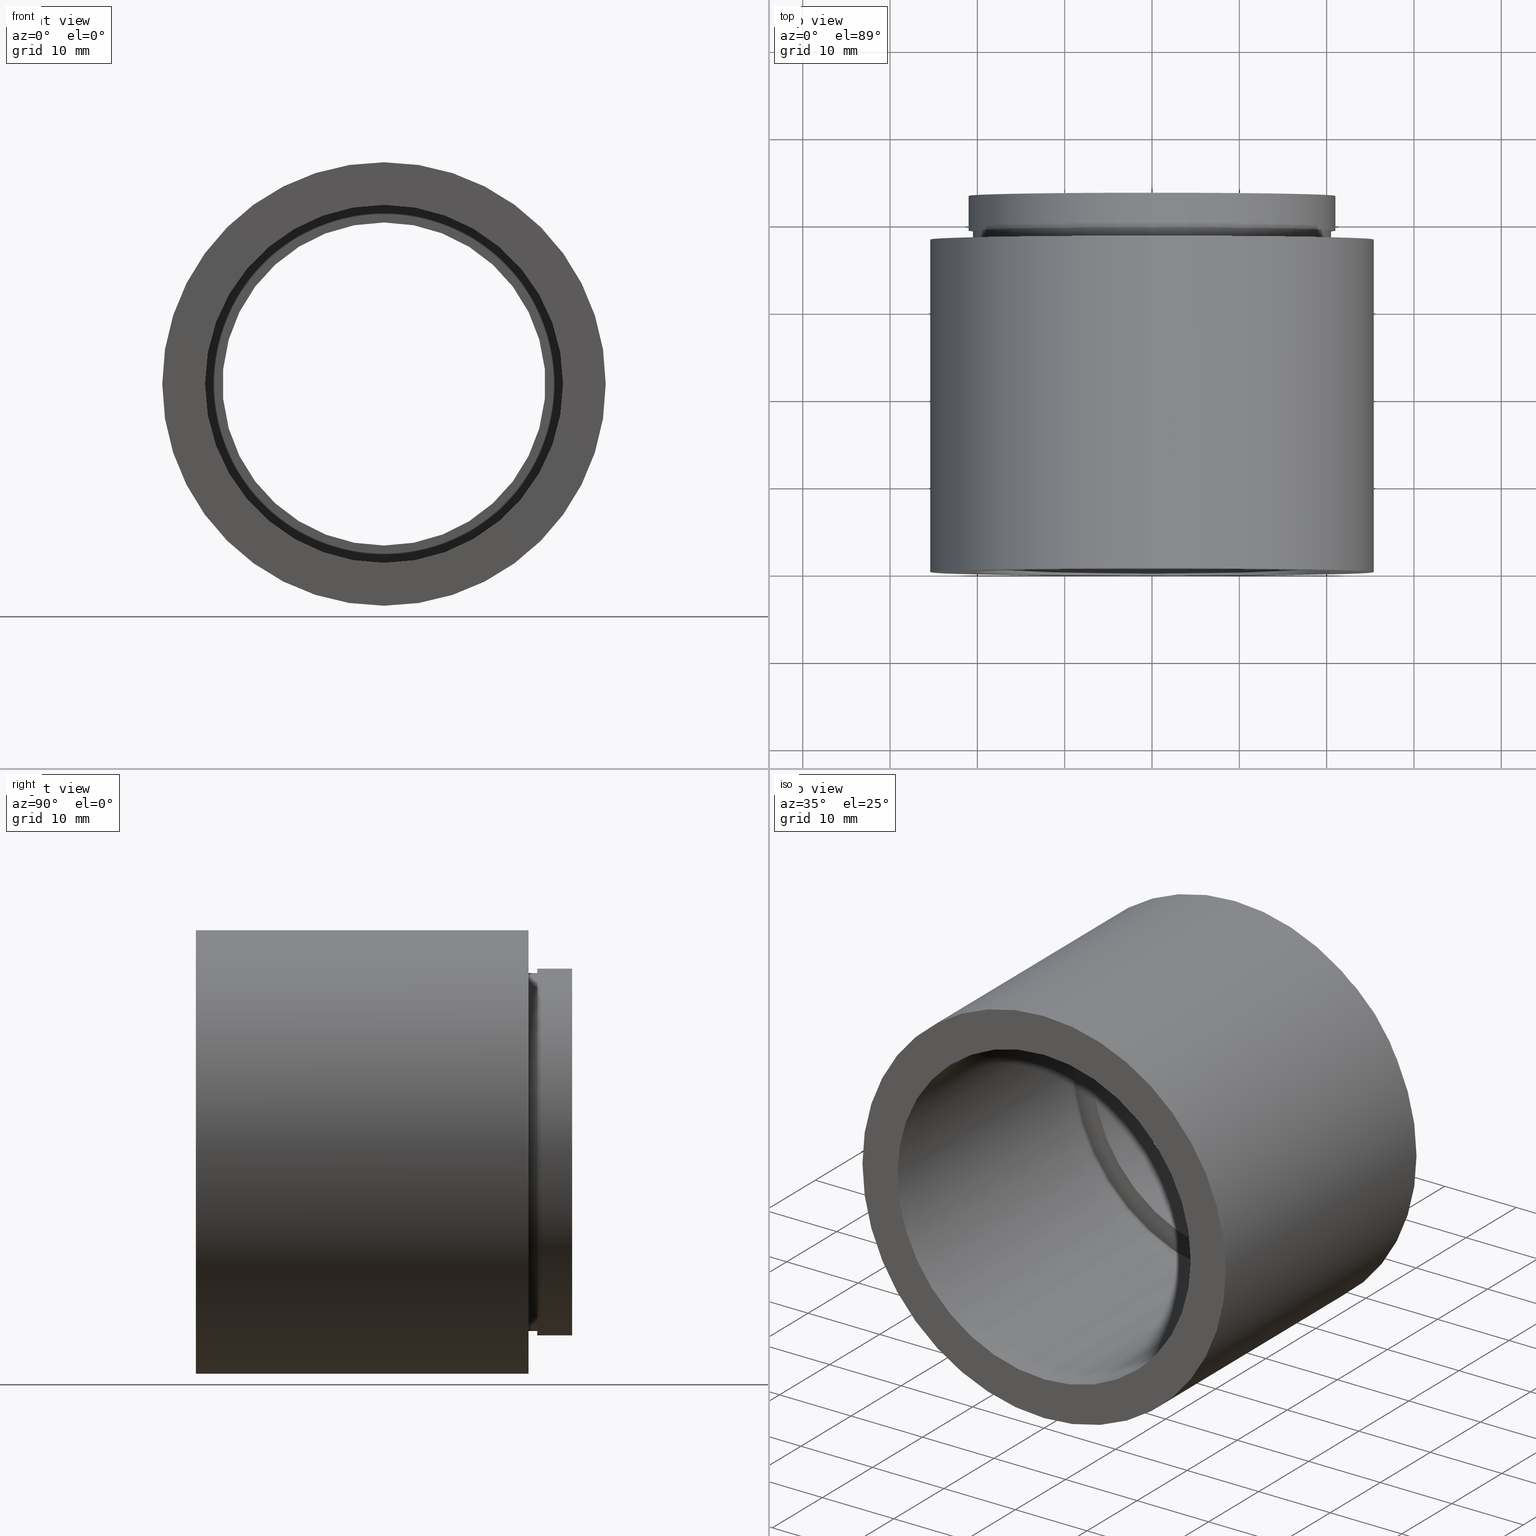
[diagram: canonical four-view strip — front | top / right | iso, engineering-drawing reading convention]
A machine part, canonical four-view strip (front | top / right | iso — engineering-drawing reading convention). The complete STEP part file that produces these views, byte-faithful:
ISO-10303-21;
HEADER;
FILE_DESCRIPTION (( 'STEP AP214' ),
    '1' );
FILE_NAME ('503024.STEP',
    '2019-09-05T05:40:55',
    ( '' ),
    ( '' ),
    'SwSTEP 2.0',
    'SolidWorks 2016',
    '' );
FILE_SCHEMA (( 'AUTOMOTIVE_DESIGN' ));
ENDSEC;

DATA;
#1 = MECHANICAL_DESIGN_GEOMETRIC_PRESENTATION_REPRESENTATION (  '', ( #8 ), #39 ) ;
#2 = ORIENTED_EDGE ( 'NONE', *, *, #157, .T. ) ;
#3 = EDGE_CURVE ( 'NONE', #292, #285, #214, .T. ) ;
#4 = CARTESIAN_POINT ( 'NONE',  ( 0.0000000000000000000, 35.09999999999999400, 20.50000000000002100 ) ) ;
#5 = ORIENTED_EDGE ( 'NONE', *, *, #215, .F. ) ;
#6 = CARTESIAN_POINT ( 'NONE',  ( 0.0000000000000000000, 43.09999999999998700, 18.50000000000001400 ) ) ;
#7 = CIRCLE ( 'NONE', #363, 18.50000000000001400 ) ;
#8 = STYLED_ITEM ( 'NONE', ( #207 ), #527 ) ;
#9 =( LENGTH_UNIT ( ) NAMED_UNIT ( * ) SI_UNIT ( .MILLI., .METRE. ) );
#10 = ORIENTED_EDGE ( 'NONE', *, *, #236, .T. ) ;
#11 = EDGE_CURVE ( 'NONE', #419, #345, #64, .T. ) ;
#12 = DIRECTION ( 'NONE',  ( -0.0000000000000000000, 1.000000000000000000, -0.0000000000000000000 ) ) ;
#13 = AXIS2_PLACEMENT_3D ( 'NONE', #422, #89, #368 ) ;
#14 =( NAMED_UNIT ( * ) SI_UNIT ( $, .STERADIAN. ) SOLID_ANGLE_UNIT ( ) );
#15 = DIRECTION ( 'NONE',  ( -0.0000000000000000000, 1.000000000000000000, -0.0000000000000000000 ) ) ;
#16 = EDGE_LOOP ( 'NONE', ( #142, #287 ) ) ;
#17 = MECHANICAL_DESIGN_GEOMETRIC_PRESENTATION_REPRESENTATION (  '', ( #336 ), #491 ) ;
#18 = ORIENTED_EDGE ( 'NONE', *, *, #215, .T. ) ;
#19 = CARTESIAN_POINT ( 'NONE',  ( 0.0000000000000000000, 161.3761669434274500, 21.10000000000001600 ) ) ;
#20 = PRESENTATION_STYLE_ASSIGNMENT (( #127 ) ) ;
#21 = FILL_AREA_STYLE_COLOUR ( '', #545 ) ;
#22 = FILL_AREA_STYLE_COLOUR ( '', #440 ) ;
#23 = EDGE_CURVE ( 'NONE', #477, #298, #7, .T. ) ;
#24 = CARTESIAN_POINT ( 'NONE',  ( 0.0000000000000000000, -2.775557561562891400E-014, 0.0000000000000000000 ) ) ;
#25 = VERTEX_POINT ( 'NONE', #209 ) ;
#26 = AXIS2_PLACEMENT_3D ( 'NONE', #496, #195, #548 ) ;
#27 = LINE ( 'NONE', #366, #34 ) ;
#28 = CARTESIAN_POINT ( 'NONE',  ( 0.0000000000000000000, 161.3761669434274500, 0.0000000000000000000 ) ) ;
#29 = CYLINDRICAL_SURFACE ( 'NONE', #279, 25.40000000000001600 ) ;
#30 =( NAMED_UNIT ( * ) PLANE_ANGLE_UNIT ( ) SI_UNIT ( $, .RADIAN. ) );
#31 = SURFACE_SIDE_STYLE ('',( #569 ) ) ;
#32 = DIRECTION ( 'NONE',  ( 0.0000000000000000000, 0.0000000000000000000, 1.000000000000000000 ) ) ;
#33 = CARTESIAN_POINT ( 'NONE',  ( 2.265596578422605000E-015, 43.09999999999998700, -18.50000000000001400 ) ) ;
#34 = VECTOR ( 'NONE', #325, 1000.000000000000000 ) ;
#35 = AXIS2_PLACEMENT_3D ( 'NONE', #37, #533, #235 ) ;
#36 = ADVANCED_FACE ( 'NONE', ( #608 ), #246, .T. ) ;
#37 = CARTESIAN_POINT ( 'NONE',  ( 0.0000000000000000000, -2.775557561562891400E-014, 0.0000000000000000000 ) ) ;
#38 = CARTESIAN_POINT ( 'NONE',  ( 0.0000000000000000000, 39.09999999999998000, 20.50000000000001100 ) ) ;
#39 =( GEOMETRIC_REPRESENTATION_CONTEXT ( 3 ) GLOBAL_UNCERTAINTY_ASSIGNED_CONTEXT ( ( #255 ) ) GLOBAL_UNIT_ASSIGNED_CONTEXT ( ( #121, #216, #271 ) ) REPRESENTATION_CONTEXT ( 'NONE', 'WORKASPACE' ) );
#40 = APPLICATION_PROTOCOL_DEFINITION ( 'draft international standard', 'automotive_design', 1998, #332 ) ;
#41 = EDGE_LOOP ( 'NONE', ( #605, #612 ) ) ;
#42 = ORIENTED_EDGE ( 'NONE', *, *, #51, .T. ) ;
#43 = PRESENTATION_STYLE_ASSIGNMENT (( #365 ) ) ;
#44 = ADVANCED_FACE ( 'NONE', ( #169, #191 ), #272, .F. ) ;
#45 = PLANE ( 'NONE',  #179 ) ;
#46 = CARTESIAN_POINT ( 'NONE',  ( 0.0000000000000000000, 43.09999999999998700, 0.0000000000000000000 ) ) ;
#47 =( GEOMETRIC_REPRESENTATION_CONTEXT ( 3 ) GLOBAL_UNCERTAINTY_ASSIGNED_CONTEXT ( ( #437 ) ) GLOBAL_UNIT_ASSIGNED_CONTEXT ( ( #425, #128, #273 ) ) REPRESENTATION_CONTEXT ( 'NONE', 'WORKASPACE' ) );
#48 = VERTEX_POINT ( 'NONE', #409 ) ;
#49 = ORIENTED_EDGE ( 'NONE', *, *, #249, .T. ) ;
#50 = AXIS2_PLACEMENT_3D ( 'NONE', #597, #383, #99 ) ;
#51 = EDGE_CURVE ( 'NONE', #517, #412, #57, .T. ) ;
#52 = CARTESIAN_POINT ( 'NONE',  ( 2.265596578422605000E-015, 161.3761669434274500, -18.50000000000001400 ) ) ;
#53 = STYLED_ITEM ( 'NONE', ( #79 ), #471 ) ;
#54 = ORIENTED_EDGE ( 'NONE', *, *, #61, .T. ) ;
#55 = ORIENTED_EDGE ( 'NONE', *, *, #227, .F. ) ;
#56 = CARTESIAN_POINT ( 'NONE',  ( 0.0000000000000000000, 35.09999999999999400, 0.0000000000000000000 ) ) ;
#57 = CIRCLE ( 'NONE', #290, 25.40000000000001300 ) ;
#58 = AXIS2_PLACEMENT_3D ( 'NONE', #173, #315, #613 ) ;
#59 = CARTESIAN_POINT ( 'NONE',  ( 0.0000000000000000000, 38.09999999999998000, 0.0000000000000000000 ) ) ;
#60 = VERTEX_POINT ( 'NONE', #38 ) ;
#61 = EDGE_CURVE ( 'NONE', #446, #412, #27, .T. ) ;
#62 = DIRECTION ( 'NONE',  ( -0.0000000000000000000, 1.000000000000000000, -0.0000000000000000000 ) ) ;
#63 = EDGE_LOOP ( 'NONE', ( #18, #241 ) ) ;
#64 = CIRCLE ( 'NONE', #302, 21.00000000000001400 ) ;
#65 = DIRECTION ( 'NONE',  ( -0.0000000000000000000, 1.000000000000000000, -0.0000000000000000000 ) ) ;
#66 = AXIS2_PLACEMENT_3D ( 'NONE', #418, #126, #185 ) ;
#67 = DIRECTION ( 'NONE',  ( -0.0000000000000000000, 1.000000000000000000, -0.0000000000000000000 ) ) ;
#68 = CARTESIAN_POINT ( 'NONE',  ( 0.0000000000000000000, 39.09999999999998000, 0.0000000000000000000 ) ) ;
#69 = ORIENTED_EDGE ( 'NONE', *, *, #459, .F. ) ;
#70 = AXIS2_PLACEMENT_3D ( 'NONE', #68, #172, #75 ) ;
#71 = CARTESIAN_POINT ( 'NONE',  ( 0.0000000000000000000, 39.09999999999998000, 21.00000000000001800 ) ) ;
#72 = FACE_OUTER_BOUND ( 'NONE', #204, .T. ) ;
#73 = FILL_AREA_STYLE_COLOUR ( '', #622 ) ;
#74 = DIRECTION ( 'NONE',  ( -0.0000000000000000000, 1.000000000000000000, -0.0000000000000000000 ) ) ;
#75 = DIRECTION ( 'NONE',  ( 0.0000000000000000000, 0.0000000000000000000, 1.000000000000000000 ) ) ;
#76 = EDGE_LOOP ( 'NONE', ( #143, #85, #54, #367 ) ) ;
#77 = CYLINDRICAL_SURFACE ( 'NONE', #210, 20.50000000000001100 ) ;
#78 = DIRECTION ( 'NONE',  ( 0.0000000000000000000, 0.0000000000000000000, 1.000000000000000000 ) ) ;
#79 = PRESENTATION_STYLE_ASSIGNMENT (( #528 ) ) ;
#80 = DIRECTION ( 'NONE',  ( -0.0000000000000000000, 1.000000000000000000, -0.0000000000000000000 ) ) ;
#81 =( LENGTH_UNIT ( ) NAMED_UNIT ( * ) SI_UNIT ( .MILLI., .METRE. ) );
#82 = AXIS2_PLACEMENT_3D ( 'NONE', #400, #114, #208 ) ;
#83 = SURFACE_SIDE_STYLE ('',( #86 ) ) ;
#84 = DIRECTION ( 'NONE',  ( 0.0000000000000000000, 0.0000000000000000000, 1.000000000000000000 ) ) ;
#85 = ORIENTED_EDGE ( 'NONE', *, *, #387, .T. ) ;
#86 = SURFACE_STYLE_FILL_AREA ( #620 ) ;
#87 = CYLINDRICAL_SURFACE ( 'NONE', #596, 18.50000000000001400 ) ;
#88 = ADVANCED_FACE ( 'NONE', ( #231, #72 ), #320, .F. ) ;
#89 = DIRECTION ( 'NONE',  ( -0.0000000000000000000, 1.000000000000000000, -0.0000000000000000000 ) ) ;
#90 = UNCERTAINTY_MEASURE_WITH_UNIT (LENGTH_MEASURE( 1.000000000000000100E-005 ), #467, 'distance_accuracy_value', 'NONE');
#91 = DIRECTION ( 'NONE',  ( -0.0000000000000000000, 1.000000000000000000, -0.0000000000000000000 ) ) ;
#92 = STYLED_ITEM ( 'NONE', ( #289 ), #537 ) ;
#93 = ORIENTED_EDGE ( 'NONE', *, *, #516, .T. ) ;
#94 = ORIENTED_EDGE ( 'NONE', *, *, #283, .F. ) ;
#95 = VECTOR ( 'NONE', #106, 1000.000000000000000 ) ;
#96 = CARTESIAN_POINT ( 'NONE',  ( 0.0000000000000000000, 35.09999999999999400, 0.0000000000000000000 ) ) ;
#97 = PRESENTATION_STYLE_ASSIGNMENT (( #598 ) ) ;
#98 = CARTESIAN_POINT ( 'NONE',  ( 0.0000000000000000000, 43.09999999999998700, 21.00000000000001400 ) ) ;
#99 = DIRECTION ( 'NONE',  ( 0.0000000000000000000, 0.0000000000000000000, 1.000000000000000000 ) ) ;
#100 = AXIS2_PLACEMENT_3D ( 'NONE', #326, #80, #624 ) ;
#101 = ORIENTED_EDGE ( 'NONE', *, *, #601, .T. ) ;
#102 = DIRECTION ( 'NONE',  ( -0.0000000000000000000, 1.000000000000000000, -0.0000000000000000000 ) ) ;
#103 = FACE_BOUND ( 'NONE', #170, .T. ) ;
#104 = SURFACE_STYLE_FILL_AREA ( #381 ) ;
#105 = PRESENTATION_LAYER_ASSIGNMENT (  '', '', ( #336 ) ) ;
#106 = DIRECTION ( 'NONE',  ( -0.0000000000000000000, 1.000000000000000000, -0.0000000000000000000 ) ) ;
#107 = CARTESIAN_POINT ( 'NONE',  ( 20.50000000000001400, 38.09999999999998000, 0.0000000000000000000 ) ) ;
#108 = CARTESIAN_POINT ( 'NONE',  ( 0.0000000000000000000, 39.09999999999998000, 0.0000000000000000000 ) ) ;
#109 = UNCERTAINTY_MEASURE_WITH_UNIT (LENGTH_MEASURE( 1.000000000000000100E-005 ), #132, 'distance_accuracy_value', 'NONE');
#110 = VERTEX_POINT ( 'NONE', #473 ) ;
#111 = ORIENTED_EDGE ( 'NONE', *, *, #540, .F. ) ;
#112 = CARTESIAN_POINT ( 'NONE',  ( 0.0000000000000000000, 38.09999999999998000, 25.40000000000001300 ) ) ;
#113 = CYLINDRICAL_SURFACE ( 'NONE', #233, 20.50000000000002100 ) ;
#114 = DIRECTION ( 'NONE',  ( -0.0000000000000000000, 1.000000000000000000, -0.0000000000000000000 ) ) ;
#115 = AXIS2_PLACEMENT_3D ( 'NONE', #46, #184, #340 ) ;
#116 = CARTESIAN_POINT ( 'NONE',  ( 2.265596578422605000E-015, 36.09999999999999400, -18.50000000000001400 ) ) ;
#117 = ORIENTED_EDGE ( 'NONE', *, *, #348, .T. ) ;
#118 = DIRECTION ( 'NONE',  ( 0.0000000000000000000, -0.0000000000000000000, -1.000000000000000000 ) ) ;
#119 = ORIENTED_EDGE ( 'NONE', *, *, #11, .F. ) ;
#120 = FILL_AREA_STYLE ('',( #615 ) ) ;
#121 =( LENGTH_UNIT ( ) NAMED_UNIT ( * ) SI_UNIT ( .MILLI., .METRE. ) );
#122 =( NAMED_UNIT ( * ) SI_UNIT ( $, .STERADIAN. ) SOLID_ANGLE_UNIT ( ) );
#123 = EDGE_LOOP ( 'NONE', ( #152, #361, #586, #493 ) ) ;
#124 = PRESENTATION_LAYER_ASSIGNMENT (  '', '', ( #92 ) ) ;
#125 = DIRECTION ( 'NONE',  ( 0.0000000000000000000, 0.0000000000000000000, 1.000000000000000000 ) ) ;
#126 = DIRECTION ( 'NONE',  ( -0.0000000000000000000, 1.000000000000000000, -0.0000000000000000000 ) ) ;
#127 = SURFACE_STYLE_USAGE ( .BOTH. , #83 ) ;
#128 =( NAMED_UNIT ( * ) PLANE_ANGLE_UNIT ( ) SI_UNIT ( $, .RADIAN. ) );
#129 = AXIS2_PLACEMENT_3D ( 'NONE', #476, #182, #282 ) ;
#130 = CARTESIAN_POINT ( 'NONE',  ( 18.50000000000001400, 43.09999999999998700, 0.0000000000000000000 ) ) ;
#131 = COLOUR_RGB ( '',1.000000000000000000, 1.000000000000000000, 1.000000000000000000 ) ;
#132 =( LENGTH_UNIT ( ) NAMED_UNIT ( * ) SI_UNIT ( .MILLI., .METRE. ) );
#133 = DIRECTION ( 'NONE',  ( 0.0000000000000000000, 0.0000000000000000000, 1.000000000000000000 ) ) ;
#134 = ADVANCED_FACE ( 'NONE', ( #346 ), #199, .F. ) ;
#135 = AXIS2_PLACEMENT_3D ( 'NONE', #435, #140, #490 ) ;
#136 = ORIENTED_EDGE ( 'NONE', *, *, #426, .F. ) ;
#137 = ORIENTED_EDGE ( 'NONE', *, *, #225, .F. ) ;
#138 = EDGE_CURVE ( 'NONE', #536, #419, #371, .T. ) ;
#139 = ORIENTED_EDGE ( 'NONE', *, *, #227, .T. ) ;
#140 = DIRECTION ( 'NONE',  ( -0.0000000000000000000, 1.000000000000000000, -0.0000000000000000000 ) ) ;
#141 = CARTESIAN_POINT ( 'NONE',  ( 0.0000000000000000000, 38.09999999999998000, 0.0000000000000000000 ) ) ;
#142 = ORIENTED_EDGE ( 'NONE', *, *, #551, .F. ) ;
#143 = ORIENTED_EDGE ( 'NONE', *, *, #190, .F. ) ;
#144 = LINE ( 'NONE', #294, #385 ) ;
#145 = AXIS2_PLACEMENT_3D ( 'NONE', #354, #67, #505 ) ;
#146 = CARTESIAN_POINT ( 'NONE',  ( 2.510525938252076500E-015, 35.09999999999999400, -20.50000000000002100 ) ) ;
#147 = VECTOR ( 'NONE', #427, 1000.000000000000000 ) ;
#148 = VECTOR ( 'NONE', #554, 1000.000000000000000 ) ;
#149 = DIRECTION ( 'NONE',  ( -0.0000000000000000000, 1.000000000000000000, -0.0000000000000000000 ) ) ;
#150 = PRODUCT_DEFINITION_FORMATION_WITH_SPECIFIED_SOURCE ( '�κ�', '', #242, .NOT_KNOWN. ) ;
#151 = ORIENTED_EDGE ( 'NONE', *, *, #561, .F. ) ;
#152 = ORIENTED_EDGE ( 'NONE', *, *, #494, .F. ) ;
#153 = ORIENTED_EDGE ( 'NONE', *, *, #327, .F. ) ;
#154 = CIRCLE ( 'NONE', #433, 20.50000000000002100 ) ;
#155 = AXIS2_PLACEMENT_3D ( 'NONE', #408, #360, #125 ) ;
#156 =( NAMED_UNIT ( * ) PLANE_ANGLE_UNIT ( ) SI_UNIT ( $, .RADIAN. ) );
#157 = EDGE_CURVE ( 'NONE', #159, #266, #277, .T. ) ;
#158 = CARTESIAN_POINT ( 'NONE',  ( 0.0000000000000000000, -2.775557561562891400E-014, 25.40000000000002000 ) ) ;
#159 = VERTEX_POINT ( 'NONE', #33 ) ;
#160 = DIRECTION ( 'NONE',  ( -0.0000000000000000000, 1.000000000000000000, -0.0000000000000000000 ) ) ;
#161 = CIRCLE ( 'NONE', #370, 21.10000000000001900 ) ;
#162 = EDGE_CURVE ( 'NONE', #285, #292, #525, .T. ) ;
#163 = DIRECTION ( 'NONE',  ( -0.0000000000000000000, 1.000000000000000000, -0.0000000000000000000 ) ) ;
#164 = CARTESIAN_POINT ( 'NONE',  ( 0.0000000000000000000, 36.09999999999999400, 0.0000000000000000000 ) ) ;
#165 = FILL_AREA_STYLE ('',( #73 ) ) ;
#166 = SURFACE_STYLE_USAGE ( .BOTH. , #357 ) ;
#167 = ORIENTED_EDGE ( 'NONE', *, *, #348, .F. ) ;
#168 = ORIENTED_EDGE ( 'NONE', *, *, #138, .F. ) ;
#169 = FACE_BOUND ( 'NONE', #16, .T. ) ;
#170 = EDGE_LOOP ( 'NONE', ( #93, #101 ) ) ;
#171 = EDGE_CURVE ( 'NONE', #298, #266, #386, .T. ) ;
#172 = DIRECTION ( 'NONE',  ( -0.0000000000000000000, 1.000000000000000000, -0.0000000000000000000 ) ) ;
#173 = CARTESIAN_POINT ( 'NONE',  ( 0.0000000000000000000, 161.3761669434274500, 0.0000000000000000000 ) ) ;
#174 = ORIENTED_EDGE ( 'NONE', *, *, #601, .F. ) ;
#175 = LINE ( 'NONE', #203, #352 ) ;
#176 = DIRECTION ( 'NONE',  ( 0.0000000000000000000, -1.000000000000000000, 0.0000000000000000000 ) ) ;
#177 = APPLICATION_PROTOCOL_DEFINITION ( 'draft international standard', 'automotive_design', 1998, #475 ) ;
#178 = CIRCLE ( 'NONE', #428, 18.50000000000001400 ) ;
#179 = AXIS2_PLACEMENT_3D ( 'NONE', #334, #374, #377 ) ;
#180 = FILL_AREA_STYLE_COLOUR ( '', #380 ) ;
#181 = DIRECTION ( 'NONE',  ( 0.0000000000000000000, -1.000000000000000000, 0.0000000000000000000 ) ) ;
#182 = DIRECTION ( 'NONE',  ( 0.0000000000000000000, 0.0000000000000000000, 1.000000000000000000 ) ) ;
#183 = EDGE_LOOP ( 'NONE', ( #137, #355 ) ) ;
#184 = DIRECTION ( 'NONE',  ( -0.0000000000000000000, 1.000000000000000000, -0.0000000000000000000 ) ) ;
#185 = DIRECTION ( 'NONE',  ( 0.0000000000000000000, 0.0000000000000000000, 1.000000000000000000 ) ) ;
#186 = CARTESIAN_POINT ( 'NONE',  ( 3.110602869834278800E-015, 161.3761669434274500, -25.40000000000001600 ) ) ;
#187 = ADVANCED_FACE ( 'NONE', ( #538, #544 ), #45, .F. ) ;
#188 = AXIS2_PLACEMENT_3D ( 'NONE', #96, #239, #133 ) ;
#189 = EDGE_LOOP ( 'NONE', ( #174, #376, #274, #522 ) ) ;
#190 = EDGE_CURVE ( 'NONE', #220, #517, #581, .T. ) ;
#191 = FACE_OUTER_BOUND ( 'NONE', #394, .T. ) ;
#192 = DIRECTION ( 'NONE',  ( -0.0000000000000000000, 1.000000000000000000, -0.0000000000000000000 ) ) ;
#193 = PLANE ( 'NONE',  #50 ) ;
#194 = PRODUCT_RELATED_PRODUCT_CATEGORY ( 'part', '', ( #242 ) ) ;
#195 = DIRECTION ( 'NONE',  ( -0.0000000000000000000, 1.000000000000000000, -0.0000000000000000000 ) ) ;
#196 = ORIENTED_EDGE ( 'NONE', *, *, #448, .T. ) ;
#197 = MECHANICAL_DESIGN_GEOMETRIC_PRESENTATION_REPRESENTATION (  '', ( #500 ), #299 ) ;
#198 = CARTESIAN_POINT ( 'NONE',  ( 0.0000000000000000000, 39.09999999999998000, 0.0000000000000000000 ) ) ;
#199 = CYLINDRICAL_SURFACE ( 'NONE', #567, 21.10000000000001600 ) ;
#200 = UNCERTAINTY_MEASURE_WITH_UNIT (LENGTH_MEASURE( 1.000000000000000100E-005 ), #415, 'distance_accuracy_value', 'NONE');
#201 = VECTOR ( 'NONE', #461, 1000.000000000000000 ) ;
#202 = DIRECTION ( 'NONE',  ( -0.0000000000000000000, 1.000000000000000000, -0.0000000000000000000 ) ) ;
#203 = CARTESIAN_POINT ( 'NONE',  ( 2.510525938252075300E-015, 161.3761669434274500, -20.50000000000001100 ) ) ;
#204 = EDGE_LOOP ( 'NONE', ( #10, #619 ) ) ;
#205 = DIRECTION ( 'NONE',  ( -0.0000000000000000000, 1.000000000000000000, -0.0000000000000000000 ) ) ;
#206 = EDGE_LOOP ( 'NONE', ( #94, #317 ) ) ;
#207 = PRESENTATION_STYLE_ASSIGNMENT (( #166 ) ) ;
#208 = DIRECTION ( 'NONE',  ( 0.0000000000000000000, 0.0000000000000000000, 1.000000000000000000 ) ) ;
#209 = CARTESIAN_POINT ( 'NONE',  ( 2.510525938252075300E-015, 39.09999999999998000, -20.50000000000001100 ) ) ;
#210 = AXIS2_PLACEMENT_3D ( 'NONE', #492, #393, #590 ) ;
#211 = DIRECTION ( 'NONE',  ( 0.0000000000000000000, 0.0000000000000000000, 1.000000000000000000 ) ) ;
#212 = EDGE_LOOP ( 'NONE', ( #382, #221, #69, #580 ) ) ;
#213 = DIRECTION ( 'NONE',  ( 0.0000000000000000000, 0.0000000000000000000, 1.000000000000000000 ) ) ;
#214 = CIRCLE ( 'NONE', #268, 20.50000000000002100 ) ;
#215 = EDGE_CURVE ( 'NONE', #298, #477, #464, .T. ) ;
#216 =( NAMED_UNIT ( * ) PLANE_ANGLE_UNIT ( ) SI_UNIT ( $, .RADIAN. ) );
#217 =( NAMED_UNIT ( * ) SI_UNIT ( $, .STERADIAN. ) SOLID_ANGLE_UNIT ( ) );
#218 = UNCERTAINTY_MEASURE_WITH_UNIT (LENGTH_MEASURE( 1.000000000000000100E-005 ), #81, 'distance_accuracy_value', 'NONE');
#219 = DIRECTION ( 'NONE',  ( 0.0000000000000000000, 0.0000000000000000000, 1.000000000000000000 ) ) ;
#220 = VERTEX_POINT ( 'NONE', #539 ) ;
#221 = ORIENTED_EDGE ( 'NONE', *, *, #138, .T. ) ;
#222 = FACE_OUTER_BOUND ( 'NONE', #189, .T. ) ;
#223 = SURFACE_STYLE_FILL_AREA ( #252 ) ;
#224 = PRODUCT_DEFINITION_SHAPE ( 'NONE', 'NONE',  #486 ) ;
#225 = EDGE_CURVE ( 'NONE', #384, #438, #512, .T. ) ;
#226 = SURFACE_STYLE_USAGE ( .BOTH. , #31 ) ;
#227 = EDGE_CURVE ( 'NONE', #48, #110, #397, .T. ) ;
#228 = DIRECTION ( 'NONE',  ( -0.0000000000000000000, 1.000000000000000000, -0.0000000000000000000 ) ) ;
#229 = ORIENTED_EDGE ( 'NONE', *, *, #61, .F. ) ;
#230 =( NAMED_UNIT ( * ) PLANE_ANGLE_UNIT ( ) SI_UNIT ( $, .RADIAN. ) );
#231 = FACE_BOUND ( 'NONE', #480, .T. ) ;
#232 = CARTESIAN_POINT ( 'NONE',  ( 0.0000000000000000000, 161.3761669434274500, 18.50000000000001400 ) ) ;
#233 = AXIS2_PLACEMENT_3D ( 'NONE', #541, #91, #349 ) ;
#234 = ADVANCED_FACE ( 'NONE', ( #497 ), #113, .F. ) ;
#235 = DIRECTION ( 'NONE',  ( 0.0000000000000000000, 0.0000000000000000000, 1.000000000000000000 ) ) ;
#236 = EDGE_CURVE ( 'NONE', #565, #556, #161, .T. ) ;
#237 = ADVANCED_FACE ( 'NONE', ( #481, #253 ), #388, .F. ) ;
#238 = CLOSED_SHELL ( 'NONE', ( #134, #527, #532, #284, #36, #488, #436, #44, #537, #584, #478, #237, #432, #291, #234, #88, #288, #187 ) ) ;
#239 = DIRECTION ( 'NONE',  ( -0.0000000000000000000, 1.000000000000000000, -0.0000000000000000000 ) ) ;
#240 = DIRECTION ( 'NONE',  ( 0.0000000000000000000, 0.0000000000000000000, 1.000000000000000000 ) ) ;
#241 = ORIENTED_EDGE ( 'NONE', *, *, #23, .T. ) ;
#242 = PRODUCT ( '503024', '503024', '', ( #373 ) ) ;
#243 = PRESENTATION_LAYER_ASSIGNMENT (  '', '', ( #500 ) ) ;
#244 = ORIENTED_EDGE ( 'NONE', *, *, #327, .T. ) ;
#245 = FACE_OUTER_BOUND ( 'NONE', #123, .T. ) ;
#246 = CYLINDRICAL_SURFACE ( 'NONE', #350, 21.00000000000001800 ) ;
#247 = CARTESIAN_POINT ( 'NONE',  ( 0.0000000000000000000, 36.09999999999999400, 0.0000000000000000000 ) ) ;
#248 = CIRCLE ( 'NONE', #70, 20.50000000000001100 ) ;
#249 = EDGE_CURVE ( 'NONE', #600, #285, #144, .T. ) ;
#250 = EDGE_LOOP ( 'NONE', ( #293, #592, #594, #542 ) ) ;
#251 = AXIS2_PLACEMENT_3D ( 'NONE', #130, #181, #118 ) ;
#252 = FILL_AREA_STYLE ('',( #21 ) ) ;
#253 = FACE_OUTER_BOUND ( 'NONE', #312, .T. ) ;
#254 = CARTESIAN_POINT ( 'NONE',  ( 0.0000000000000000000, 161.3761669434274500, 0.0000000000000000000 ) ) ;
#255 = UNCERTAINTY_MEASURE_WITH_UNIT (LENGTH_MEASURE( 1.000000000000000100E-005 ), #121, 'distance_accuracy_value', 'NONE');
#256 = DIRECTION ( 'NONE',  ( -0.0000000000000000000, 1.000000000000000000, -0.0000000000000000000 ) ) ;
#257 = CARTESIAN_POINT ( 'NONE',  ( 2.584004746200917000E-015, 36.09999999999999400, -21.10000000000001600 ) ) ;
#258 = CARTESIAN_POINT ( 'NONE',  ( 0.0000000000000000000, 36.09999999999999400, 0.0000000000000000000 ) ) ;
#259 = ORIENTED_EDGE ( 'NONE', *, *, #162, .T. ) ;
#260 = ORIENTED_EDGE ( 'NONE', *, *, #485, .T. ) ;
#261 = CARTESIAN_POINT ( 'NONE',  ( 0.0000000000000000000, 36.09999999999999400, 21.10000000000001600 ) ) ;
#262 = LINE ( 'NONE', #571, #201 ) ;
#263 = CARTESIAN_POINT ( 'NONE',  ( 3.110602869834278800E-015, 38.09999999999998000, -25.40000000000001300 ) ) ;
#264 = AXIS2_PLACEMENT_3D ( 'NONE', #59, #603, #310 ) ;
#265 = ORIENTED_EDGE ( 'NONE', *, *, #11, .T. ) ;
#266 = VERTEX_POINT ( 'NONE', #6 ) ;
#267 = DIRECTION ( 'NONE',  ( -0.0000000000000000000, 1.000000000000000000, -0.0000000000000000000 ) ) ;
#268 = AXIS2_PLACEMENT_3D ( 'NONE', #402, #256, #308 ) ;
#269 = SURFACE_STYLE_FILL_AREA ( #165 ) ;
#270 = COLOUR_RGB ( '',1.000000000000000000, 1.000000000000000000, 1.000000000000000000 ) ;
#271 =( NAMED_UNIT ( * ) SI_UNIT ( $, .STERADIAN. ) SOLID_ANGLE_UNIT ( ) );
#272 = PLANE ( 'NONE',  #251 ) ;
#273 =( NAMED_UNIT ( * ) SI_UNIT ( $, .STERADIAN. ) SOLID_ANGLE_UNIT ( ) );
#274 = ORIENTED_EDGE ( 'NONE', *, *, #3, .T. ) ;
#275 = CARTESIAN_POINT ( 'NONE',  ( 0.0000000000000000000, 38.09999999999998000, 0.0000000000000000000 ) ) ;
#276 =( NAMED_UNIT ( * ) PLANE_ANGLE_UNIT ( ) SI_UNIT ( $, .RADIAN. ) );
#277 = CIRCLE ( 'NONE', #115, 18.50000000000001400 ) ;
#278 = CIRCLE ( 'NONE', #359, 20.50000000000001100 ) ;
#279 = AXIS2_PLACEMENT_3D ( 'NONE', #502, #160, #511 ) ;
#280 =( NAMED_UNIT ( * ) SI_UNIT ( $, .STERADIAN. ) SOLID_ANGLE_UNIT ( ) );
#281 = DIRECTION ( 'NONE',  ( -0.0000000000000000000, 1.000000000000000000, -0.0000000000000000000 ) ) ;
#282 = DIRECTION ( 'NONE',  ( 1.000000000000000000, 0.0000000000000000000, 0.0000000000000000000 ) ) ;
#283 = EDGE_CURVE ( 'NONE', #524, #536, #369, .T. ) ;
#284 = ADVANCED_FACE ( 'NONE', ( #495 ), #77, .T. ) ;
#285 = VERTEX_POINT ( 'NONE', #4 ) ;
#286 = CARTESIAN_POINT ( 'NONE',  ( 0.0000000000000000000, 43.09999999999998700, 0.0000000000000000000 ) ) ;
#287 = ORIENTED_EDGE ( 'NONE', *, *, #157, .F. ) ;
#288 = ADVANCED_FACE ( 'NONE', ( #245 ), #331, .F. ) ;
#289 = PRESENTATION_STYLE_ASSIGNMENT (( #226 ) ) ;
#290 = AXIS2_PLACEMENT_3D ( 'NONE', #275, #228, #78 ) ;
#291 = ADVANCED_FACE ( 'NONE', ( #614, #103 ), #193, .F. ) ;
#292 = VERTEX_POINT ( 'NONE', #146 ) ;
#293 = ORIENTED_EDGE ( 'NONE', *, *, #583, .F. ) ;
#294 = CARTESIAN_POINT ( 'NONE',  ( 0.0000000000000000000, 161.3761669434274500, 20.50000000000002100 ) ) ;
#295 = EDGE_CURVE ( 'NONE', #412, #517, #364, .T. ) ;
#296 = FACE_OUTER_BOUND ( 'NONE', #206, .T. ) ;
#297 =( NAMED_UNIT ( * ) SI_UNIT ( $, .STERADIAN. ) SOLID_ANGLE_UNIT ( ) );
#298 = VERTEX_POINT ( 'NONE', #591 ) ;
#299 =( GEOMETRIC_REPRESENTATION_CONTEXT ( 3 ) GLOBAL_UNCERTAINTY_ASSIGNED_CONTEXT ( ( #218 ) ) GLOBAL_UNIT_ASSIGNED_CONTEXT ( ( #81, #458, #606 ) ) REPRESENTATION_CONTEXT ( 'NONE', 'WORKASPACE' ) );
#300 = FILL_AREA_STYLE_COLOUR ( '', #358 ) ;
#301 = LINE ( 'NONE', #582, #416 ) ;
#302 = AXIS2_PLACEMENT_3D ( 'NONE', #530, #560, #405 ) ;
#303 =( LENGTH_UNIT ( ) NAMED_UNIT ( * ) SI_UNIT ( .MILLI., .METRE. ) );
#304 = ORIENTED_EDGE ( 'NONE', *, *, #295, .T. ) ;
#305 = VECTOR ( 'NONE', #508, 1000.000000000000000 ) ;
#306 = CARTESIAN_POINT ( 'NONE',  ( 0.0000000000000000000, 161.3761669434274500, 20.50000000000001100 ) ) ;
#307 = CYLINDRICAL_SURFACE ( 'NONE', #155, 25.40000000000001600 ) ;
#308 = DIRECTION ( 'NONE',  ( 0.0000000000000000000, 0.0000000000000000000, 1.000000000000000000 ) ) ;
#309 = STYLED_ITEM ( 'NONE', ( #43 ), #488 ) ;
#310 = DIRECTION ( 'NONE',  ( 0.0000000000000000000, 0.0000000000000000000, 1.000000000000000000 ) ) ;
#311 = CARTESIAN_POINT ( 'NONE',  ( 0.0000000000000000000, 161.3761669434274500, 21.00000000000001800 ) ) ;
#312 = EDGE_LOOP ( 'NONE', ( #304, #42 ) ) ;
#313 = ORIENTED_EDGE ( 'NONE', *, *, #529, .F. ) ;
#314 = EDGE_CURVE ( 'NONE', #477, #159, #463, .T. ) ;
#315 = DIRECTION ( 'NONE',  ( -0.0000000000000000000, 1.000000000000000000, -0.0000000000000000000 ) ) ;
#316 =( GEOMETRIC_REPRESENTATION_CONTEXT ( 3 ) GLOBAL_UNCERTAINTY_ASSIGNED_CONTEXT ( ( #200 ) ) GLOBAL_UNIT_ASSIGNED_CONTEXT ( ( #415, #470, #217 ) ) REPRESENTATION_CONTEXT ( 'NONE', 'WORKASPACE' ) );
#317 = ORIENTED_EDGE ( 'NONE', *, *, #448, .F. ) ;
#318 = SURFACE_STYLE_USAGE ( .BOTH. , #515 ) ;
#319 = UNCERTAINTY_MEASURE_WITH_UNIT (LENGTH_MEASURE( 1.000000000000000100E-005 ), #9, 'distance_accuracy_value', 'NONE');
#320 = PLANE ( 'NONE',  #417 ) ;
#321 = AXIS2_PLACEMENT_3D ( 'NONE', #258, #65, #604 ) ;
#322 = ORIENTED_EDGE ( 'NONE', *, *, #516, .F. ) ;
#323 = CYLINDRICAL_SURFACE ( 'NONE', #145, 18.50000000000001400 ) ;
#324 = DIRECTION ( 'NONE',  ( 0.0000000000000000000, 0.0000000000000000000, 1.000000000000000000 ) ) ;
#325 = DIRECTION ( 'NONE',  ( -0.0000000000000000000, 1.000000000000000000, -0.0000000000000000000 ) ) ;
#326 = CARTESIAN_POINT ( 'NONE',  ( 0.0000000000000000000, 161.3761669434274500, 0.0000000000000000000 ) ) ;
#327 = EDGE_CURVE ( 'NONE', #110, #48, #439, .T. ) ;
#328 = CARTESIAN_POINT ( 'NONE',  ( 0.0000000000000000000, 161.3761669434274500, 0.0000000000000000000 ) ) ;
#329 = ORIENTED_EDGE ( 'NONE', *, *, #171, .T. ) ;
#330 = DIRECTION ( 'NONE',  ( 0.0000000000000000000, 0.0000000000000000000, 1.000000000000000000 ) ) ;
#331 = CYLINDRICAL_SURFACE ( 'NONE', #420, 21.10000000000001600 ) ;
#332 = APPLICATION_CONTEXT ( 'automotive_design' ) ;
#333 = VECTOR ( 'NONE', #534, 1000.000000000000000 ) ;
#334 = CARTESIAN_POINT ( 'NONE',  ( 21.10000000000001600, 36.09999999999999400, 0.0000000000000000000 ) ) ;
#335 = CIRCLE ( 'NONE', #547, 21.00000000000001400 ) ;
#336 = STYLED_ITEM ( 'NONE', ( #482 ), #234 ) ;
#337 = SHAPE_DEFINITION_REPRESENTATION ( #224, #471 ) ;
#338 = UNCERTAINTY_MEASURE_WITH_UNIT (LENGTH_MEASURE( 1.000000000000000100E-005 ), #576, 'distance_accuracy_value', 'NONE');
#339 = EDGE_CURVE ( 'NONE', #565, #384, #588, .T. ) ;
#340 = DIRECTION ( 'NONE',  ( 0.0000000000000000000, 0.0000000000000000000, 1.000000000000000000 ) ) ;
#341 = SURFACE_STYLE_FILL_AREA ( #410 ) ;
#342 = CARTESIAN_POINT ( 'NONE',  ( 0.0000000000000000000, 161.3761669434274500, 0.0000000000000000000 ) ) ;
#343 = AXIS2_PLACEMENT_3D ( 'NONE', #141, #595, #344 ) ;
#344 = DIRECTION ( 'NONE',  ( 0.0000000000000000000, 0.0000000000000000000, 1.000000000000000000 ) ) ;
#345 = VERTEX_POINT ( 'NONE', #98 ) ;
#346 = FACE_OUTER_BOUND ( 'NONE', #250, .T. ) ;
#347 = SURFACE_STYLE_FILL_AREA ( #570 ) ;
#348 = EDGE_CURVE ( 'NONE', #48, #25, #175, .T. ) ;
#349 = DIRECTION ( 'NONE',  ( 0.0000000000000000000, 0.0000000000000000000, 1.000000000000000000 ) ) ;
#350 = AXIS2_PLACEMENT_3D ( 'NONE', #328, #424, #330 ) ;
#351 = ORIENTED_EDGE ( 'NONE', *, *, #314, .T. ) ;
#352 = VECTOR ( 'NONE', #62, 1000.000000000000000 ) ;
#353 = STYLED_ITEM ( 'NONE', ( #97 ), #436 ) ;
#354 = CARTESIAN_POINT ( 'NONE',  ( 0.0000000000000000000, 161.3761669434274500, 0.0000000000000000000 ) ) ;
#355 = ORIENTED_EDGE ( 'NONE', *, *, #411, .F. ) ;
#356 = EDGE_CURVE ( 'NONE', #25, #60, #278, .T. ) ;
#357 = SURFACE_SIDE_STYLE ('',( #341 ) ) ;
#358 = COLOUR_RGB ( '',1.000000000000000000, 1.000000000000000000, 1.000000000000000000 ) ;
#359 = AXIS2_PLACEMENT_3D ( 'NONE', #108, #205, #399 ) ;
#360 = DIRECTION ( 'NONE',  ( -0.0000000000000000000, 1.000000000000000000, -0.0000000000000000000 ) ) ;
#361 = ORIENTED_EDGE ( 'NONE', *, *, #236, .F. ) ;
#362 = ORIENTED_EDGE ( 'NONE', *, *, #314, .F. ) ;
#363 = AXIS2_PLACEMENT_3D ( 'NONE', #164, #281, #577 ) ;
#364 = CIRCLE ( 'NONE', #26, 25.40000000000001300 ) ;
#365 = SURFACE_STYLE_USAGE ( .BOTH. , #413 ) ;
#366 = CARTESIAN_POINT ( 'NONE',  ( 0.0000000000000000000, 161.3761669434274500, 25.40000000000001600 ) ) ;
#367 = ORIENTED_EDGE ( 'NONE', *, *, #51, .F. ) ;
#368 = DIRECTION ( 'NONE',  ( 0.0000000000000000000, 0.0000000000000000000, 1.000000000000000000 ) ) ;
#369 = CIRCLE ( 'NONE', #450, 21.00000000000001800 ) ;
#370 = AXIS2_PLACEMENT_3D ( 'NONE', #56, #192, #445 ) ;
#371 = LINE ( 'NONE', #520, #147 ) ;
#372 = DIRECTION ( 'NONE',  ( -0.0000000000000000000, 1.000000000000000000, -0.0000000000000000000 ) ) ;
#373 = PRODUCT_CONTEXT ( 'NONE', #332, 'mechanical' ) ;
#374 = DIRECTION ( 'NONE',  ( -0.0000000000000000000, 1.000000000000000000, 0.0000000000000000000 ) ) ;
#375 =( GEOMETRIC_REPRESENTATION_CONTEXT ( 3 ) GLOBAL_UNCERTAINTY_ASSIGNED_CONTEXT ( ( #109 ) ) GLOBAL_UNIT_ASSIGNED_CONTEXT ( ( #132, #230, #280 ) ) REPRESENTATION_CONTEXT ( 'NONE', 'WORKASPACE' ) );
#376 = ORIENTED_EDGE ( 'NONE', *, *, #561, .T. ) ;
#377 = DIRECTION ( 'NONE',  ( 0.0000000000000000000, 0.0000000000000000000, 1.000000000000000000 ) ) ;
#378 = VERTEX_POINT ( 'NONE', #455 ) ;
#379 = PRESENTATION_STYLE_ASSIGNMENT (( #318 ) ) ;
#380 = COLOUR_RGB ( '',1.000000000000000000, 1.000000000000000000, 1.000000000000000000 ) ;
#381 = FILL_AREA_STYLE ('',( #300 ) ) ;
#382 = ORIENTED_EDGE ( 'NONE', *, *, #283, .T. ) ;
#383 = DIRECTION ( 'NONE',  ( -0.0000000000000000000, 1.000000000000000000, 0.0000000000000000000 ) ) ;
#384 = VERTEX_POINT ( 'NONE', #261 ) ;
#385 = VECTOR ( 'NONE', #12, 1000.000000000000000 ) ;
#386 = LINE ( 'NONE', #232, #447 ) ;
#387 = EDGE_CURVE ( 'NONE', #220, #446, #558, .T. ) ;
#388 = PLANE ( 'NONE',  #407 ) ;
#389 = SURFACE_STYLE_FILL_AREA ( #579 ) ;
#390 =( GEOMETRIC_REPRESENTATION_CONTEXT ( 3 ) GLOBAL_UNCERTAINTY_ASSIGNED_CONTEXT ( ( #338 ) ) GLOBAL_UNIT_ASSIGNED_CONTEXT ( ( #576, #276, #431 ) ) REPRESENTATION_CONTEXT ( 'NONE', 'WORKASPACE' ) );
#391 = DIRECTION ( 'NONE',  ( 0.0000000000000000000, 0.0000000000000000000, 1.000000000000000000 ) ) ;
#392 = MECHANICAL_DESIGN_GEOMETRIC_PRESENTATION_REPRESENTATION (  '', ( #309 ), #316 ) ;
#393 = DIRECTION ( 'NONE',  ( -0.0000000000000000000, 1.000000000000000000, -0.0000000000000000000 ) ) ;
#394 = EDGE_LOOP ( 'NONE', ( #489, #265 ) ) ;
#395 = PRODUCT_DEFINITION_CONTEXT ( 'detailed design', #475, 'design' ) ;
#396 = CARTESIAN_POINT ( 'NONE',  ( 0.0000000000000000000, -2.775557561562891400E-014, 0.0000000000000000000 ) ) ;
#397 = CIRCLE ( 'NONE', #343, 20.50000000000001400 ) ;
#398 = CYLINDRICAL_SURFACE ( 'NONE', #443, 20.50000000000001100 ) ;
#399 = DIRECTION ( 'NONE',  ( 0.0000000000000000000, 0.0000000000000000000, 1.000000000000000000 ) ) ;
#400 = CARTESIAN_POINT ( 'NONE',  ( 0.0000000000000000000, 39.09999999999998000, 0.0000000000000000000 ) ) ;
#401 = ORIENTED_EDGE ( 'NONE', *, *, #551, .T. ) ;
#402 = CARTESIAN_POINT ( 'NONE',  ( 0.0000000000000000000, 35.09999999999999400, 0.0000000000000000000 ) ) ;
#403 = DIRECTION ( 'NONE',  ( 0.0000000000000000000, 0.0000000000000000000, 1.000000000000000000 ) ) ;
#404 = LINE ( 'NONE', #306, #148 ) ;
#405 = DIRECTION ( 'NONE',  ( 0.0000000000000000000, 0.0000000000000000000, 1.000000000000000000 ) ) ;
#406 = FACE_OUTER_BOUND ( 'NONE', #468, .T. ) ;
#407 = AXIS2_PLACEMENT_3D ( 'NONE', #107, #543, #499 ) ;
#408 = CARTESIAN_POINT ( 'NONE',  ( 0.0000000000000000000, 161.3761669434274500, 0.0000000000000000000 ) ) ;
#409 = CARTESIAN_POINT ( 'NONE',  ( 2.510525938252075700E-015, 38.09999999999998000, -20.50000000000001400 ) ) ;
#410 = FILL_AREA_STYLE ('',( #609 ) ) ;
#411 = EDGE_CURVE ( 'NONE', #438, #384, #506, .T. ) ;
#412 = VERTEX_POINT ( 'NONE', #112 ) ;
#413 = SURFACE_SIDE_STYLE ('',( #347 ) ) ;
#414 = CIRCLE ( 'NONE', #82, 21.00000000000001800 ) ;
#415 =( LENGTH_UNIT ( ) NAMED_UNIT ( * ) SI_UNIT ( .MILLI., .METRE. ) );
#416 = VECTOR ( 'NONE', #484, 1000.000000000000000 ) ;
#417 = AXIS2_PLACEMENT_3D ( 'NONE', #514, #176, #564 ) ;
#418 = CARTESIAN_POINT ( 'NONE',  ( 0.0000000000000000000, 35.09999999999999400, 0.0000000000000000000 ) ) ;
#419 = VERTEX_POINT ( 'NONE', #453 ) ;
#420 = AXIS2_PLACEMENT_3D ( 'NONE', #342, #202, #552 ) ;
#421 = EDGE_LOOP ( 'NONE', ( #167, #139, #452, #621 ) ) ;
#422 = CARTESIAN_POINT ( 'NONE',  ( 0.0000000000000000000, -2.775557561562891400E-014, 0.0000000000000000000 ) ) ;
#423 = EDGE_LOOP ( 'NONE', ( #168, #196, #260, #119 ) ) ;
#424 = DIRECTION ( 'NONE',  ( -0.0000000000000000000, 1.000000000000000000, -0.0000000000000000000 ) ) ;
#425 =( LENGTH_UNIT ( ) NAMED_UNIT ( * ) SI_UNIT ( .MILLI., .METRE. ) );
#426 = EDGE_CURVE ( 'NONE', #110, #60, #404, .T. ) ;
#427 = DIRECTION ( 'NONE',  ( -0.0000000000000000000, 1.000000000000000000, -0.0000000000000000000 ) ) ;
#428 = AXIS2_PLACEMENT_3D ( 'NONE', #286, #372, #84 ) ;
#429 = DIRECTION ( 'NONE',  ( -0.0000000000000000000, 1.000000000000000000, 0.0000000000000000000 ) ) ;
#430 = EDGE_LOOP ( 'NONE', ( #244, #117, #313, #136 ) ) ;
#431 =( NAMED_UNIT ( * ) SI_UNIT ( $, .STERADIAN. ) SOLID_ANGLE_UNIT ( ) );
#432 = ADVANCED_FACE ( 'NONE', ( #465 ), #29, .T. ) ;
#433 = AXIS2_PLACEMENT_3D ( 'NONE', #24, #267, #219 ) ;
#434 = COLOUR_RGB ( '',1.000000000000000000, 1.000000000000000000, 1.000000000000000000 ) ;
#435 = CARTESIAN_POINT ( 'NONE',  ( 0.0000000000000000000, 36.09999999999999400, 0.0000000000000000000 ) ) ;
#436 = ADVANCED_FACE ( 'NONE', ( #526 ), #323, .F. ) ;
#437 = UNCERTAINTY_MEASURE_WITH_UNIT (LENGTH_MEASURE( 1.000000000000000100E-005 ), #425, 'distance_accuracy_value', 'NONE');
#438 = VERTEX_POINT ( 'NONE', #257 ) ;
#439 = CIRCLE ( 'NONE', #264, 20.50000000000001400 ) ;
#440 = COLOUR_RGB ( '',1.000000000000000000, 1.000000000000000000, 1.000000000000000000 ) ;
#441 = MECHANICAL_DESIGN_GEOMETRIC_PRESENTATION_REPRESENTATION (  '', ( #92 ), #390 ) ;
#442 = SURFACE_STYLE_USAGE ( .BOTH. , #593 ) ;
#443 = AXIS2_PLACEMENT_3D ( 'NONE', #254, #15, #403 ) ;
#444 =( NAMED_UNIT ( * ) PLANE_ANGLE_UNIT ( ) SI_UNIT ( $, .RADIAN. ) );
#445 = DIRECTION ( 'NONE',  ( 0.0000000000000000000, 0.0000000000000000000, 1.000000000000000000 ) ) ;
#446 = VERTEX_POINT ( 'NONE', #158 ) ;
#447 = VECTOR ( 'NONE', #487, 1000.000000000000000 ) ;
#448 = EDGE_CURVE ( 'NONE', #536, #524, #414, .T. ) ;
#449 = CIRCLE ( 'NONE', #35, 25.40000000000002000 ) ;
#450 = AXIS2_PLACEMENT_3D ( 'NONE', #198, #149, #240 ) ;
#451 = SURFACE_SIDE_STYLE ('',( #223 ) ) ;
#452 = ORIENTED_EDGE ( 'NONE', *, *, #426, .T. ) ;
#453 = CARTESIAN_POINT ( 'NONE',  ( 2.571758278209443600E-015, 43.09999999999998700, -21.00000000000001400 ) ) ;
#454 = PRESENTATION_LAYER_ASSIGNMENT (  '', '', ( #353 ) ) ;
#455 = CARTESIAN_POINT ( 'NONE',  ( 2.510525938252076500E-015, -2.775557561562891400E-014, -20.50000000000002100 ) ) ;
#456 = FACE_OUTER_BOUND ( 'NONE', #423, .T. ) ;
#457 = CARTESIAN_POINT ( 'NONE',  ( 0.0000000000000000000, 43.09999999999998700, 0.0000000000000000000 ) ) ;
#458 =( NAMED_UNIT ( * ) PLANE_ANGLE_UNIT ( ) SI_UNIT ( $, .RADIAN. ) );
#459 = EDGE_CURVE ( 'NONE', #345, #419, #335, .T. ) ;
#460 = MECHANICAL_DESIGN_GEOMETRIC_PRESENTATION_REPRESENTATION (  '', ( #53 ), #375 ) ;
#461 = DIRECTION ( 'NONE',  ( -0.0000000000000000000, 1.000000000000000000, -0.0000000000000000000 ) ) ;
#462 = EDGE_LOOP ( 'NONE', ( #587, #351, #2, #510 ) ) ;
#463 = LINE ( 'NONE', #52, #95 ) ;
#464 = CIRCLE ( 'NONE', #135, 18.50000000000001400 ) ;
#465 = FACE_OUTER_BOUND ( 'NONE', #76, .T. ) ;
#466 = MECHANICAL_DESIGN_GEOMETRIC_PRESENTATION_REPRESENTATION (  '', ( #513 ), #607 ) ;
#467 =( LENGTH_UNIT ( ) NAMED_UNIT ( * ) SI_UNIT ( .MILLI., .METRE. ) );
#468 = EDGE_LOOP ( 'NONE', ( #501, #549, #550, #229 ) ) ;
#469 = ORIENTED_EDGE ( 'NONE', *, *, #3, .F. ) ;
#470 =( NAMED_UNIT ( * ) PLANE_ANGLE_UNIT ( ) SI_UNIT ( $, .RADIAN. ) );
#471 = ADVANCED_BREP_SHAPE_REPRESENTATION ( '503024', ( #518, #129 ), #47 ) ;
#472 = CARTESIAN_POINT ( 'NONE',  ( 21.00000000000001800, 39.09999999999998000, 0.0000000000000000000 ) ) ;
#473 = CARTESIAN_POINT ( 'NONE',  ( 0.0000000000000000000, 38.09999999999998000, 20.50000000000001400 ) ) ;
#474 = PRESENTATION_LAYER_ASSIGNMENT (  '', '', ( #53 ) ) ;
#475 = APPLICATION_CONTEXT ( 'automotive_design' ) ;
#476 = CARTESIAN_POINT ( 'NONE',  ( 0.0000000000000000000, 0.0000000000000000000, 0.0000000000000000000 ) ) ;
#477 = VERTEX_POINT ( 'NONE', #116 ) ;
#478 = ADVANCED_FACE ( 'NONE', ( #498 ), #398, .T. ) ;
#479 = PRESENTATION_LAYER_ASSIGNMENT (  '', '', ( #309 ) ) ;
#480 = EDGE_LOOP ( 'NONE', ( #611, #469 ) ) ;
#481 = FACE_BOUND ( 'NONE', #509, .T. ) ;
#482 = PRESENTATION_STYLE_ASSIGNMENT (( #442 ) ) ;
#483 = CYLINDRICAL_SURFACE ( 'NONE', #100, 21.00000000000001800 ) ;
#484 = DIRECTION ( 'NONE',  ( -0.0000000000000000000, 1.000000000000000000, -0.0000000000000000000 ) ) ;
#485 = EDGE_CURVE ( 'NONE', #524, #345, #504, .T. ) ;
#486 = PRODUCT_DEFINITION ( 'δ֪', '', #150, #395 ) ;
#487 = DIRECTION ( 'NONE',  ( -0.0000000000000000000, 1.000000000000000000, -0.0000000000000000000 ) ) ;
#488 = ADVANCED_FACE ( 'NONE', ( #566 ), #87, .F. ) ;
#489 = ORIENTED_EDGE ( 'NONE', *, *, #459, .T. ) ;
#490 = DIRECTION ( 'NONE',  ( 0.0000000000000000000, 0.0000000000000000000, 1.000000000000000000 ) ) ;
#491 =( GEOMETRIC_REPRESENTATION_CONTEXT ( 3 ) GLOBAL_UNCERTAINTY_ASSIGNED_CONTEXT ( ( #319 ) ) GLOBAL_UNIT_ASSIGNED_CONTEXT ( ( #9, #444, #297 ) ) REPRESENTATION_CONTEXT ( 'NONE', 'WORKASPACE' ) );
#492 = CARTESIAN_POINT ( 'NONE',  ( 0.0000000000000000000, 161.3761669434274500, 0.0000000000000000000 ) ) ;
#493 = ORIENTED_EDGE ( 'NONE', *, *, #225, .T. ) ;
#494 = EDGE_CURVE ( 'NONE', #556, #438, #262, .T. ) ;
#495 = FACE_OUTER_BOUND ( 'NONE', #430, .T. ) ;
#496 = CARTESIAN_POINT ( 'NONE',  ( 0.0000000000000000000, 38.09999999999998000, 0.0000000000000000000 ) ) ;
#497 = FACE_OUTER_BOUND ( 'NONE', #572, .T. ) ;
#498 = FACE_OUTER_BOUND ( 'NONE', #421, .T. ) ;
#499 = DIRECTION ( 'NONE',  ( 0.0000000000000000000, -0.0000000000000000000, -1.000000000000000000 ) ) ;
#500 = STYLED_ITEM ( 'NONE', ( #20 ), #36 ) ;
#501 = ORIENTED_EDGE ( 'NONE', *, *, #540, .T. ) ;
#502 = CARTESIAN_POINT ( 'NONE',  ( 0.0000000000000000000, 161.3761669434274500, 0.0000000000000000000 ) ) ;
#503 = EDGE_LOOP ( 'NONE', ( #362, #5, #329, #401 ) ) ;
#504 = LINE ( 'NONE', #311, #602 ) ;
#505 = DIRECTION ( 'NONE',  ( 0.0000000000000000000, 0.0000000000000000000, 1.000000000000000000 ) ) ;
#506 = CIRCLE ( 'NONE', #321, 21.10000000000001600 ) ;
#507 = FILL_AREA_STYLE_COLOUR ( '', #434 ) ;
#508 = DIRECTION ( 'NONE',  ( -0.0000000000000000000, 1.000000000000000000, -0.0000000000000000000 ) ) ;
#509 = EDGE_LOOP ( 'NONE', ( #153, #55 ) ) ;
#510 = ORIENTED_EDGE ( 'NONE', *, *, #171, .F. ) ;
#511 = DIRECTION ( 'NONE',  ( 0.0000000000000000000, 0.0000000000000000000, 1.000000000000000000 ) ) ;
#512 = CIRCLE ( 'NONE', #521, 21.10000000000001600 ) ;
#513 = STYLED_ITEM ( 'NONE', ( #379 ), #518 ) ;
#514 = CARTESIAN_POINT ( 'NONE',  ( 20.50000000000002100, 35.09999999999999400, 0.0000000000000000000 ) ) ;
#515 = SURFACE_SIDE_STYLE ('',( #269 ) ) ;
#516 = EDGE_CURVE ( 'NONE', #600, #378, #154, .T. ) ;
#517 = VERTEX_POINT ( 'NONE', #263 ) ;
#518 = MANIFOLD_SOLID_BREP ( '��ת1', #238 ) ;
#519 = CYLINDRICAL_SURFACE ( 'NONE', #58, 20.50000000000002100 ) ;
#520 = CARTESIAN_POINT ( 'NONE',  ( 2.571758278209444000E-015, 161.3761669434274500, -21.00000000000001800 ) ) ;
#521 = AXIS2_PLACEMENT_3D ( 'NONE', #247, #102, #391 ) ;
#522 = ORIENTED_EDGE ( 'NONE', *, *, #249, .F. ) ;
#523 = CARTESIAN_POINT ( 'NONE',  ( 0.0000000000000000000, 35.09999999999999400, 21.10000000000001900 ) ) ;
#524 = VERTEX_POINT ( 'NONE', #71 ) ;
#525 = CIRCLE ( 'NONE', #188, 20.50000000000002100 ) ;
#526 = FACE_OUTER_BOUND ( 'NONE', #503, .T. ) ;
#527 = ADVANCED_FACE ( 'NONE', ( #222 ), #519, .F. ) ;
#528 = SURFACE_STYLE_USAGE ( .BOTH. , #623 ) ;
#529 = EDGE_CURVE ( 'NONE', #60, #25, #248, .T. ) ;
#530 = CARTESIAN_POINT ( 'NONE',  ( 0.0000000000000000000, 43.09999999999998700, 0.0000000000000000000 ) ) ;
#531 = PLANE ( 'NONE',  #562 ) ;
#532 = ADVANCED_FACE ( 'NONE', ( #406 ), #307, .T. ) ;
#533 = DIRECTION ( 'NONE',  ( -0.0000000000000000000, 1.000000000000000000, -0.0000000000000000000 ) ) ;
#534 = DIRECTION ( 'NONE',  ( -0.0000000000000000000, 1.000000000000000000, -0.0000000000000000000 ) ) ;
#535 = PRESENTATION_LAYER_ASSIGNMENT (  '', '', ( #8 ) ) ;
#536 = VERTEX_POINT ( 'NONE', #568 ) ;
#537 = ADVANCED_FACE ( 'NONE', ( #456 ), #483, .T. ) ;
#538 = FACE_OUTER_BOUND ( 'NONE', #183, .T. ) ;
#539 = CARTESIAN_POINT ( 'NONE',  ( 3.110602869834279600E-015, -2.775557561562891400E-014, -25.40000000000002300 ) ) ;
#540 = EDGE_CURVE ( 'NONE', #446, #220, #449, .T. ) ;
#541 = CARTESIAN_POINT ( 'NONE',  ( 0.0000000000000000000, 161.3761669434274500, 0.0000000000000000000 ) ) ;
#542 = ORIENTED_EDGE ( 'NONE', *, *, #339, .F. ) ;
#543 = DIRECTION ( 'NONE',  ( 0.0000000000000000000, -1.000000000000000000, 0.0000000000000000000 ) ) ;
#544 = FACE_BOUND ( 'NONE', #63, .T. ) ;
#545 = COLOUR_RGB ( '',1.000000000000000000, 1.000000000000000000, 1.000000000000000000 ) ;
#546 = FACE_BOUND ( 'NONE', #41, .T. ) ;
#547 = AXIS2_PLACEMENT_3D ( 'NONE', #457, #163, #211 ) ;
#548 = DIRECTION ( 'NONE',  ( 0.0000000000000000000, 0.0000000000000000000, 1.000000000000000000 ) ) ;
#549 = ORIENTED_EDGE ( 'NONE', *, *, #190, .T. ) ;
#550 = ORIENTED_EDGE ( 'NONE', *, *, #295, .F. ) ;
#551 = EDGE_CURVE ( 'NONE', #266, #159, #178, .T. ) ;
#552 = DIRECTION ( 'NONE',  ( 0.0000000000000000000, 0.0000000000000000000, 1.000000000000000000 ) ) ;
#553 = DIRECTION ( 'NONE',  ( 0.0000000000000000000, 0.0000000000000000000, 1.000000000000000000 ) ) ;
#554 = DIRECTION ( 'NONE',  ( -0.0000000000000000000, 1.000000000000000000, -0.0000000000000000000 ) ) ;
#555 = DIRECTION ( 'NONE',  ( -0.0000000000000000000, 1.000000000000000000, -0.0000000000000000000 ) ) ;
#556 = VERTEX_POINT ( 'NONE', #618 ) ;
#557 = AXIS2_PLACEMENT_3D ( 'NONE', #396, #555, #553 ) ;
#558 = CIRCLE ( 'NONE', #557, 25.40000000000002000 ) ;
#559 = CIRCLE ( 'NONE', #13, 20.50000000000002100 ) ;
#560 = DIRECTION ( 'NONE',  ( -0.0000000000000000000, 1.000000000000000000, -0.0000000000000000000 ) ) ;
#561 = EDGE_CURVE ( 'NONE', #378, #292, #301, .T. ) ;
#562 = AXIS2_PLACEMENT_3D ( 'NONE', #472, #429, #324 ) ;
#563 = DIRECTION ( 'NONE',  ( -0.0000000000000000000, 1.000000000000000000, -0.0000000000000000000 ) ) ;
#564 = DIRECTION ( 'NONE',  ( 0.0000000000000000000, -0.0000000000000000000, -1.000000000000000000 ) ) ;
#565 = VERTEX_POINT ( 'NONE', #523 ) ;
#566 = FACE_OUTER_BOUND ( 'NONE', #462, .T. ) ;
#567 = AXIS2_PLACEMENT_3D ( 'NONE', #575, #616, #32 ) ;
#568 = CARTESIAN_POINT ( 'NONE',  ( 2.571758278209444000E-015, 39.09999999999998000, -21.00000000000001800 ) ) ;
#569 = SURFACE_STYLE_FILL_AREA ( #120 ) ;
#570 = FILL_AREA_STYLE ('',( #507 ) ) ;
#571 = CARTESIAN_POINT ( 'NONE',  ( 2.584004746200917000E-015, 161.3761669434274500, -21.10000000000001600 ) ) ;
#572 = EDGE_LOOP ( 'NONE', ( #151, #322, #49, #259 ) ) ;
#573 = CARTESIAN_POINT ( 'NONE',  ( 0.0000000000000000000, -2.775557561562891400E-014, 20.50000000000002100 ) ) ;
#574 = EDGE_LOOP ( 'NONE', ( #111, #599 ) ) ;
#575 = CARTESIAN_POINT ( 'NONE',  ( 0.0000000000000000000, 161.3761669434274500, 0.0000000000000000000 ) ) ;
#576 =( LENGTH_UNIT ( ) NAMED_UNIT ( * ) SI_UNIT ( .MILLI., .METRE. ) );
#577 = DIRECTION ( 'NONE',  ( 0.0000000000000000000, 0.0000000000000000000, 1.000000000000000000 ) ) ;
#578 = PRESENTATION_LAYER_ASSIGNMENT (  '', '', ( #513 ) ) ;
#579 = FILL_AREA_STYLE ('',( #180 ) ) ;
#580 = ORIENTED_EDGE ( 'NONE', *, *, #485, .F. ) ;
#581 = LINE ( 'NONE', #186, #333 ) ;
#582 = CARTESIAN_POINT ( 'NONE',  ( 2.510525938252076500E-015, 161.3761669434274500, -20.50000000000002100 ) ) ;
#583 = EDGE_CURVE ( 'NONE', #556, #565, #610, .T. ) ;
#584 = ADVANCED_FACE ( 'NONE', ( #296, #546 ), #531, .F. ) ;
#585 = UNCERTAINTY_MEASURE_WITH_UNIT (LENGTH_MEASURE( 1.000000000000000100E-005 ), #303, 'distance_accuracy_value', 'NONE');
#586 = ORIENTED_EDGE ( 'NONE', *, *, #339, .T. ) ;
#587 = ORIENTED_EDGE ( 'NONE', *, *, #23, .F. ) ;
#588 = LINE ( 'NONE', #19, #305 ) ;
#589 = MECHANICAL_DESIGN_GEOMETRIC_PRESENTATION_REPRESENTATION (  '', ( #353 ), #617 ) ;
#590 = DIRECTION ( 'NONE',  ( 0.0000000000000000000, 0.0000000000000000000, 1.000000000000000000 ) ) ;
#591 = CARTESIAN_POINT ( 'NONE',  ( 0.0000000000000000000, 36.09999999999999400, 18.50000000000001400 ) ) ;
#592 = ORIENTED_EDGE ( 'NONE', *, *, #494, .T. ) ;
#593 = SURFACE_SIDE_STYLE ('',( #104 ) ) ;
#594 = ORIENTED_EDGE ( 'NONE', *, *, #411, .T. ) ;
#595 = DIRECTION ( 'NONE',  ( -0.0000000000000000000, 1.000000000000000000, -0.0000000000000000000 ) ) ;
#596 = AXIS2_PLACEMENT_3D ( 'NONE', #28, #74, #213 ) ;
#597 = CARTESIAN_POINT ( 'NONE',  ( 25.40000000000002000, -1.454715626710879400E-014, 0.0000000000000000000 ) ) ;
#598 = SURFACE_STYLE_USAGE ( .BOTH. , #451 ) ;
#599 = ORIENTED_EDGE ( 'NONE', *, *, #387, .F. ) ;
#600 = VERTEX_POINT ( 'NONE', #573 ) ;
#601 = EDGE_CURVE ( 'NONE', #378, #600, #559, .T. ) ;
#602 = VECTOR ( 'NONE', #563, 1000.000000000000000 ) ;
#603 = DIRECTION ( 'NONE',  ( -0.0000000000000000000, 1.000000000000000000, -0.0000000000000000000 ) ) ;
#604 = DIRECTION ( 'NONE',  ( 0.0000000000000000000, 0.0000000000000000000, 1.000000000000000000 ) ) ;
#605 = ORIENTED_EDGE ( 'NONE', *, *, #529, .T. ) ;
#606 =( NAMED_UNIT ( * ) SI_UNIT ( $, .STERADIAN. ) SOLID_ANGLE_UNIT ( ) );
#607 =( GEOMETRIC_REPRESENTATION_CONTEXT ( 3 ) GLOBAL_UNCERTAINTY_ASSIGNED_CONTEXT ( ( #90 ) ) GLOBAL_UNIT_ASSIGNED_CONTEXT ( ( #467, #30, #122 ) ) REPRESENTATION_CONTEXT ( 'NONE', 'WORKASPACE' ) );
#608 = FACE_OUTER_BOUND ( 'NONE', #212, .T. ) ;
#609 = FILL_AREA_STYLE_COLOUR ( '', #131 ) ;
#610 = CIRCLE ( 'NONE', #66, 21.10000000000001900 ) ;
#611 = ORIENTED_EDGE ( 'NONE', *, *, #162, .F. ) ;
#612 = ORIENTED_EDGE ( 'NONE', *, *, #356, .T. ) ;
#613 = DIRECTION ( 'NONE',  ( 0.0000000000000000000, 0.0000000000000000000, 1.000000000000000000 ) ) ;
#614 = FACE_OUTER_BOUND ( 'NONE', #574, .T. ) ;
#615 = FILL_AREA_STYLE_COLOUR ( '', #270 ) ;
#616 = DIRECTION ( 'NONE',  ( -0.0000000000000000000, 1.000000000000000000, -0.0000000000000000000 ) ) ;
#617 =( GEOMETRIC_REPRESENTATION_CONTEXT ( 3 ) GLOBAL_UNCERTAINTY_ASSIGNED_CONTEXT ( ( #585 ) ) GLOBAL_UNIT_ASSIGNED_CONTEXT ( ( #303, #156, #14 ) ) REPRESENTATION_CONTEXT ( 'NONE', 'WORKASPACE' ) );
#618 = CARTESIAN_POINT ( 'NONE',  ( 2.584004746200917400E-015, 35.09999999999999400, -21.10000000000001900 ) ) ;
#619 = ORIENTED_EDGE ( 'NONE', *, *, #583, .T. ) ;
#620 = FILL_AREA_STYLE ('',( #22 ) ) ;
#621 = ORIENTED_EDGE ( 'NONE', *, *, #356, .F. ) ;
#622 = COLOUR_RGB ( '',1.000000000000000000, 1.000000000000000000, 1.000000000000000000 ) ;
#623 = SURFACE_SIDE_STYLE ('',( #389 ) ) ;
#624 = DIRECTION ( 'NONE',  ( 0.0000000000000000000, 0.0000000000000000000, 1.000000000000000000 ) ) ;
ENDSEC;
END-ISO-10303-21;
